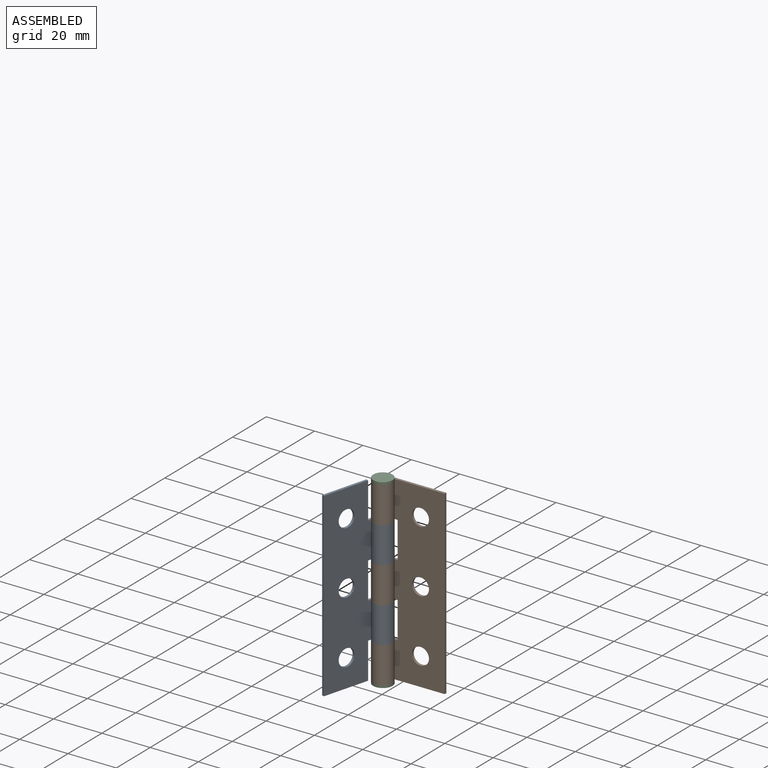
[diagram: assembled view]
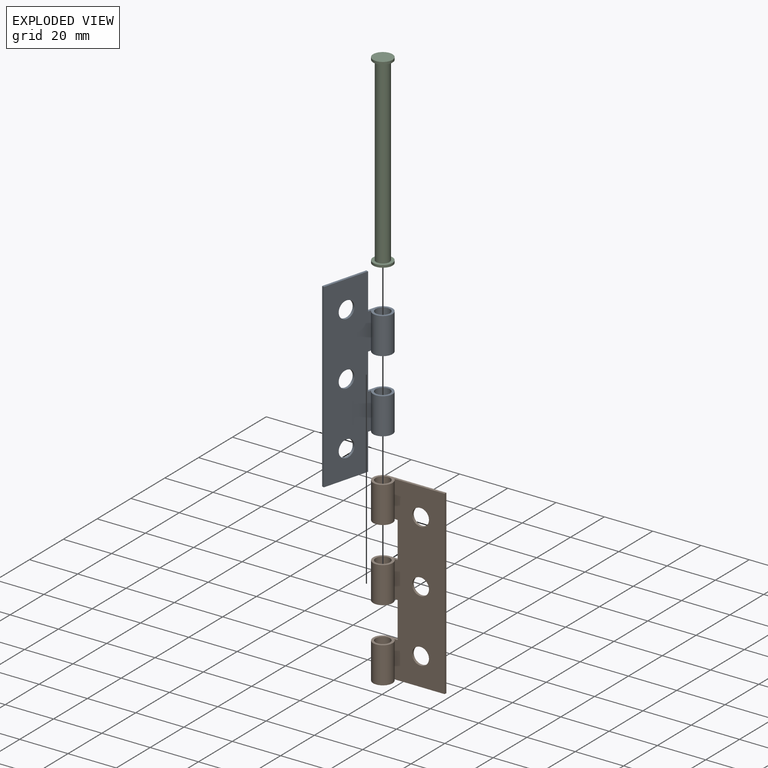
[diagram: exploded view]
GUIDED TOUR — MATED ASSEMBLY (Onshape document ad61bf7f7cb62c72eb166668, AutoMate assembly ad61bf7f7cb62c72eb166668_369f2b2ec34753710b511f61_ba933b5510f9bfcfc449f53c_default)

This assembly has 3 components, labeled P0..P2 below (a component is one placed occurrence of a part; the same part can appear more than once), held together by 3 mates. A mate is a constraint between two components; its type names the relative motion it leaves free:
  CYLINDRICAL — leaves both rotation about and translation along the listed axis free,
  PLANAR — leaves sliding in the plane through the listed point (normal = the listed direction) and rotation about that normal free.
Axis/direction vectors are unit vectors and 'through' points are millimeter coordinates, both in the assembly's world frame.

MATES
  1. CYLINDRICAL "Cylindrical 1": P1 <-> P2, axis (0.000, 0.000, -1.000) through (-43.37, -14.71, -29.45) mm
  2. PLANAR "Planar 1": P1 <-> P0, direction (0.000, 0.000, -1.000) through (-43.37, -14.71, 30.55) mm
  3. CYLINDRICAL "Cylindrical 2": P0 <-> P1, axis (0.000, 0.000, 1.000) through (-43.37, -14.71, 30.55) mm

ASSEMBLY ORDER
  1. P1 — the base component [order heuristic]
  2. P0 [order heuristic]
  3. P2 [order heuristic]
Order-tag legend:
  [order heuristic] — this assembly is geometrically interlocked (no collision-free removal order exists), so components are listed in mate-graph order; insertion feasibility is not verified.

Of the 3 components, 1 carries the full construction recipe — the FeatureScript program that regenerates the part's solid from scratch; the rest are supplied as boundary geometry only.
Each toured component is shown spotlighted twice — in the assembled view, then in the exploded view, where a leader line traces a displaced component back to its assembled socket (saturated green if recipe-attached, orange if geometry-only; every other component desaturated gray) — followed by its recipe or geometry summary and the mates that hold it.
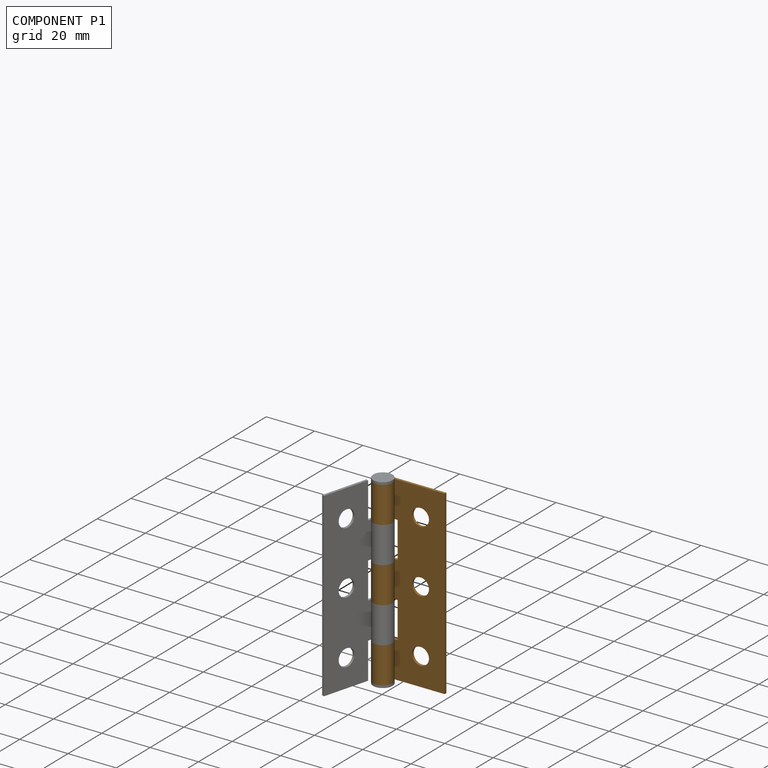
[diagram: component P1 — assembled]
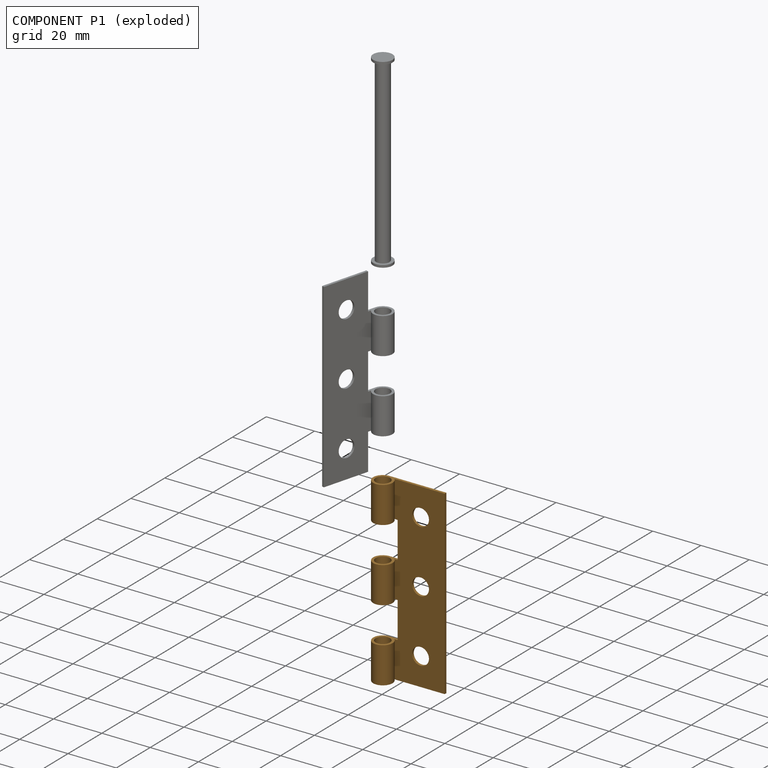
[diagram: component P1 — exploded]
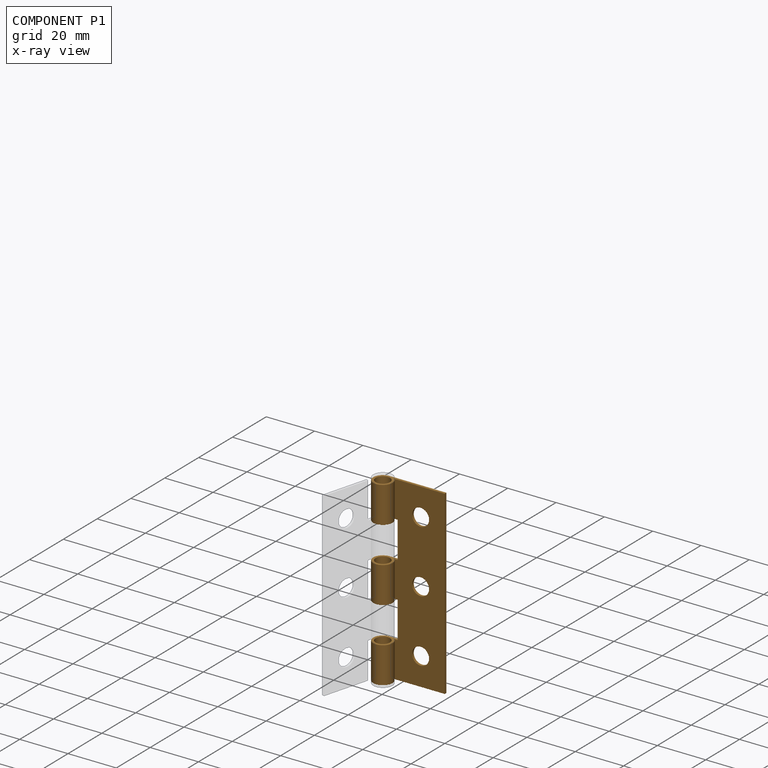
[diagram: component P1 — x-ray view]
COMPONENT P1 — geometry summary (no construction recipe available for this part):
  bounding box: 75.0 x 27.5 x 8.0 mm
  B-rep topology: 1 solid, 20 faces, 110 edges
  volume: 2435 mm^3 (15% of its bounding box)
  symmetry: mirror-symmetric across its z mid-plane
Held by: CYLINDRICAL mate "Cylindrical 1" to P2; PLANAR mate "Planar 1" to P0; CYLINDRICAL mate "Cylindrical 2" to P0.
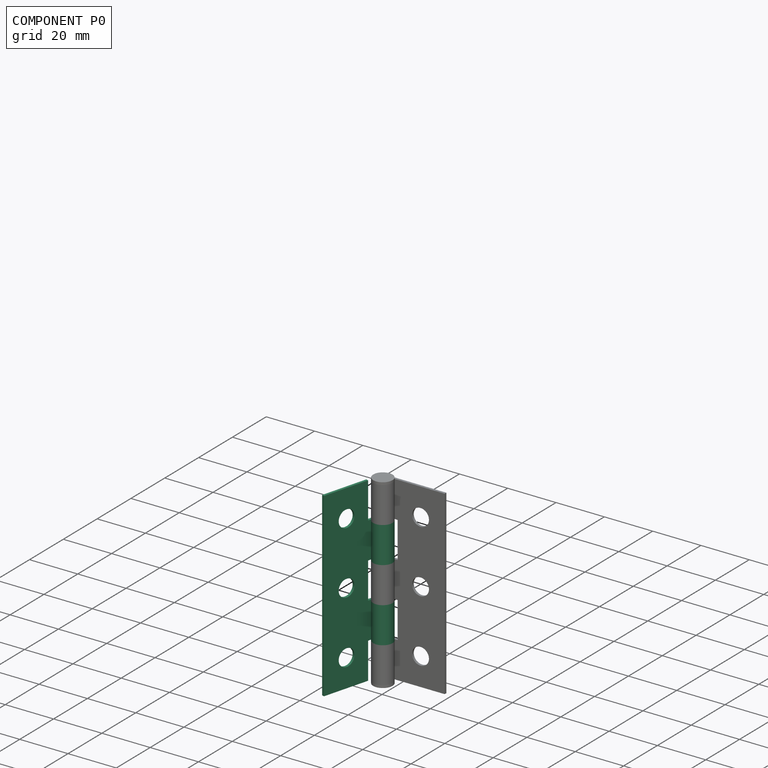
[diagram: component P0 — assembled]
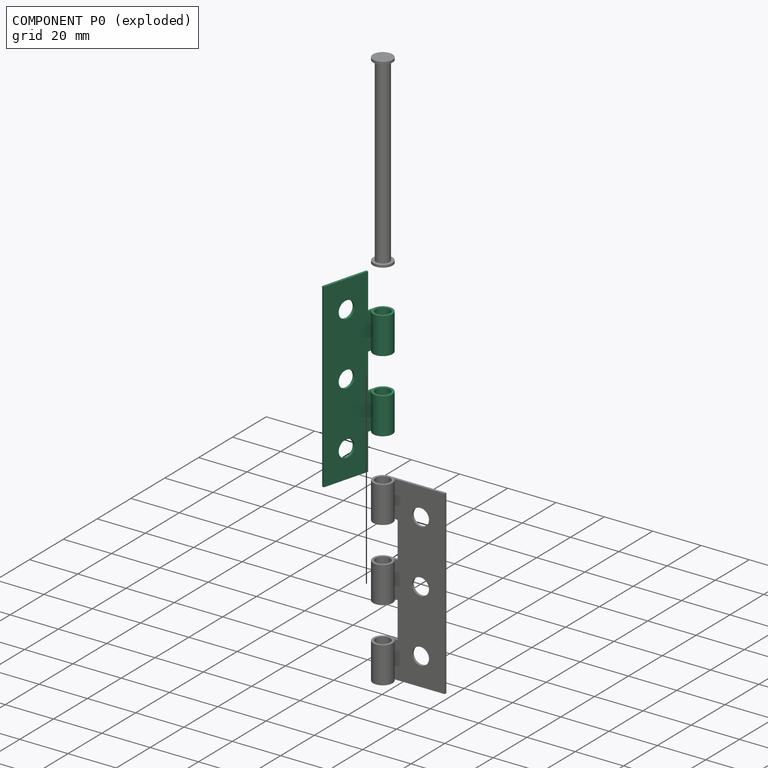
[diagram: component P0 — exploded]
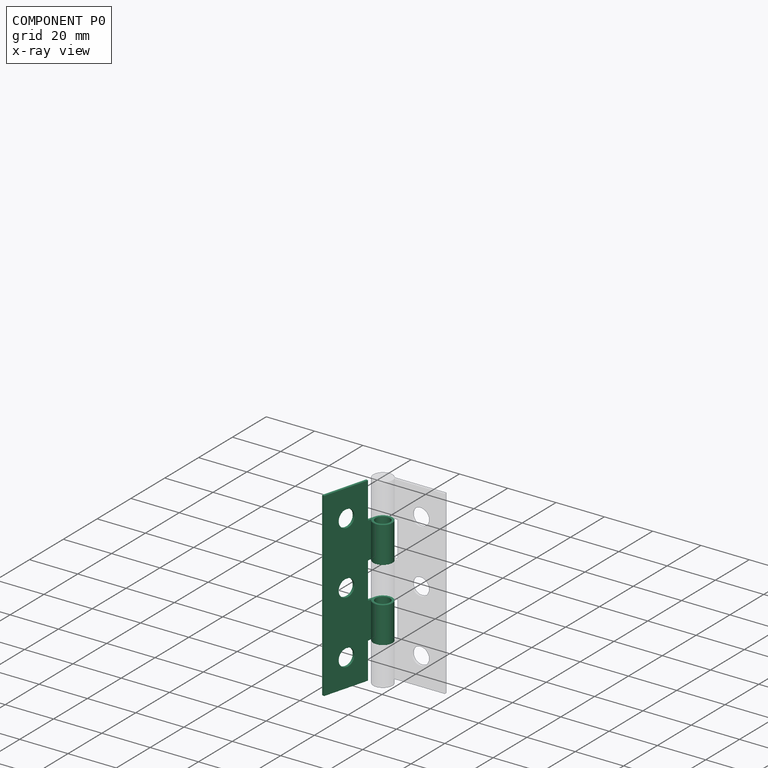
[diagram: component P0 — x-ray view]
COMPONENT P0 — recipe-attached (CADFS 00909816, mesh-verified: the recipe's output STEP matches this component's geometry to below the mesh-comparison resolution (tessellation chordal tolerance ~0.12 mm)).
Held by: PLANAR mate "Planar 1" to P1; CYLINDRICAL mate "Cylindrical 2" to P1.
Construction recipe (FeatureScript — the CAD program that rebuilds this solid; sketch coordinates are in the units given by the * unit suffixes, e.g. mm):

FeatureScript 1511;
import(path : "onshape/std/geometry.fs", version : "1511.0");
import(path : "onshape/std/common.fs", version : "1511.0");
const mm = millimeter;
const VERTEX = EntityType.VERTEX;
const EDGE = EntityType.EDGE;
const FACE = EntityType.FACE;
const BODY = EntityType.BODY;
function v(x, y){return vector(x, y);}
function OD(order){return orderDisambiguation(order);}
function OSD(set){return originalSetDisambiguation(set);}
function TD(topology){return topologyDisambiguation(topology);}
function TDD(query){return trueDependencyDisambiguation(query);}
function sQuery(a, b, c) {return sketchEntityQuery(a, b, c);}

annotation { "Feature Type Name" : "Feature", "Feature Type Description" : "" }
export const myFeature = defineFeature(function(context is Context, id is Id, definition is map)
    precondition{}
    {
        {
            var Q0;
            Q0=qCreatedBy(makeId("Front.planeOp"),FACE);
            var sketch = newSketch(context, id + "F0", { "sketchPlane" : qUnion([Q0])});
            skLineSegment(sketch, "E0.bottom", {"start": v(0, 37.5) * mm, "end": v(-20, 37.5) * mm});
            skLineSegment(sketch, "E0.top", {"start": v(0, -37.5) * mm, "end": v(-20, -37.5) * mm});
            skLineSegment(sketch, "E0.left", {"start": v(0, 37.5) * mm, "end": v(0, -37.5) * mm});
            skLineSegment(sketch, "E0.right", {"start": v(-20, 37.5) * mm, "end": v(-20, -37.5) * mm});
            skCircle(sketch, "E1", {"center": v(-10, 26) * mm, "radius": 3.5 * mm});
            skCircle(sketch, "E2", {"center": v(-10, 0) * mm, "radius": 3.5 * mm});
            skCircle(sketch, "E3", {"center": v(-10, -26) * mm, "radius": 3.5 * mm});
            skSolve(sketch);
        }
        {
            var Q0;
            Q0=makeQuery(id+"F0.imprint","IMPRINT",FACE,{"disambiguationData":[TD([[makeQuery(id+"F0.imprint","IMPRINT",EDGE,{"derivedFrom":sQuery(id+"F0.wireOp",EDGE,"E0.bottom")}),1.0]])]});
            extrude(context, id + "F1", {"entities" : qUnion([Q0]), "depth" : 1 * mm, "offsetDistance" : 25 * mm});
        }
        {
            var Q0;
            Q0=makeQuery(id+"F1.opExtrude","SWEPT_FACE",FACE,{"disambiguationData":[OSD([sQuery(id+"F0.wireOp",EDGE,"E0.top")])]});
            var sketch = newSketch(context, id + "F2", { "sketchPlane" : qUnion([Q0])});
            skCircle(sketch, "E4", {"center": v(-23.5, 4) * mm, "radius": 4 * mm});
            skLineSegment(sketch, "E5", {"start": v(-20, 0) * mm, "end": v(-23.5, 0) * mm});
            skLineSegment(sketch, "E6", {"start": v(-20, 1) * mm, "end": v(-20.85, 1) * mm});
            skCircle(sketch, "E7", {"center": v(-23.5, 4) * mm, "radius": 3 * mm});
            skSolve(sketch);
        }
        {
            var Q0;
            Q0=qSketchRegion(id+"F2",true);
            var Q1;
            {var subQ0=sQuery(id+"F2.wireOp",EDGE,"E5");Q1=makeQuery(id+"F2.imprint","IMPRINT",FACE,{"disambiguationData":[TD([[makeQuery(id+"F2.imprint","IMPRINT",EDGE,{"derivedFrom":subQ0}),-1.0]])]});}
            var Q2;
            Q2=makeQuery(id+"F1.opExtrude","SWEPT_FACE",FACE,{"disambiguationData":[OSD([sQuery(id+"F0.wireOp",EDGE,"E0.bottom")])]});
            extrude(context, id + "F3", {"entities" : qUnion([Q0, Q1]), "operationType" : NewBodyOperationType.ADD, "endBound" : BoundingType.UP_TO_SURFACE, "oppositeDirection" : true, "depth" : 25 * mm, "endBoundEntityFace" : qUnion([Q2]), "offsetDistance" : 25 * mm});
        }
        {
            var Q0;
            Q0=makeQuery(id+"F3.boolean.opBoolean","MERGE",FACE,{"derivedFrom":[makeQuery(id+"F1.opExtrude","CAP_FACE",FACE,{"disambiguationData":[OSD([sQuery(id+"F0.wireOp",EDGE,"E0.bottom"),sQuery(id+"F0.wireOp",EDGE,"E0.top"),sQuery(id+"F0.wireOp",EDGE,"E0.left"),sQuery(id+"F0.wireOp",EDGE,"E0.right"),sQuery(id+"F0.wireOp",EDGE,"E1"),sQuery(id+"F0.wireOp",EDGE,"E2"),sQuery(id+"F0.wireOp",EDGE,"E3")])],"isStart":false}),makeQuery(id+"F3.opExtrude","SWEPT_FACE",FACE,{"disambiguationData":[OSD([sQuery(id+"F2.wireOp",EDGE,"E6")])]})]});
            var sketch = newSketch(context, id + "F4", { "sketchPlane" : qUnion([Q0])});
            skLineSegment(sketch, "E8.bottom", {"start": v(-19.5, 37.5) * mm, "end": v(-27.5, 37.5) * mm});
            skLineSegment(sketch, "E8.top", {"start": v(-19.5, 22.5) * mm, "end": v(-27.5, 22.5) * mm});
            skLineSegment(sketch, "E8.left", {"start": v(-19.5, 37.5) * mm, "end": v(-19.5, 22.5) * mm});
            skLineSegment(sketch, "E8.right", {"start": v(-27.5, 37.5) * mm, "end": v(-27.5, 22.5) * mm});
            skLineSegment(sketch, "E9.bottom", {"start": v(-27.5, 7.5) * mm, "end": v(-19.5, 7.5) * mm});
            skLineSegment(sketch, "E9.top", {"start": v(-27.5, -7.5) * mm, "end": v(-19.5, -7.5) * mm});
            skLineSegment(sketch, "E9.left", {"start": v(-27.5, 7.5) * mm, "end": v(-27.5, -7.5) * mm});
            skLineSegment(sketch, "E9.right", {"start": v(-19.5, 7.5) * mm, "end": v(-19.5, -7.5) * mm});
            skLineSegment(sketch, "E10.bottom", {"start": v(-19.5, -37.5) * mm, "end": v(-27.5, -37.5) * mm});
            skLineSegment(sketch, "E10.top", {"start": v(-19.5, -22.5) * mm, "end": v(-27.5, -22.5) * mm});
            skLineSegment(sketch, "E10.left", {"start": v(-19.5, -37.5) * mm, "end": v(-19.5, -22.5) * mm});
            skLineSegment(sketch, "E10.right", {"start": v(-27.5, -37.5) * mm, "end": v(-27.5, -22.5) * mm});
            skLineSegment(sketch, "E11", {"start": v(-19.5, 22.5) * mm, "end": v(-19.5, 7.5) * mm});
            skLineSegment(sketch, "E12", {"start": v(-19.5, -7.5) * mm, "end": v(-19.5, -22.5) * mm});
            skSolve(sketch);
        }
        {
            var Q0;
            Q0 = qSketchRegion(id + "F4", true);
            extrude(context, id + "F5", {"entities" : qUnion([Q0]), "operationType" : NewBodyOperationType.REMOVE, "endBound" : BoundingType.THROUGH_ALL, "oppositeDirection" : true, "depth" : 25 * mm, "offsetDistance" : 25 * mm, "hasSecondDirection" : true, "secondDirectionBound" : SecondDirectionBoundingType.THROUGH_ALL, "secondDirectionOppositeDirection" : false, "secondDirectionDepth" : 25 * mm});
        }
    });
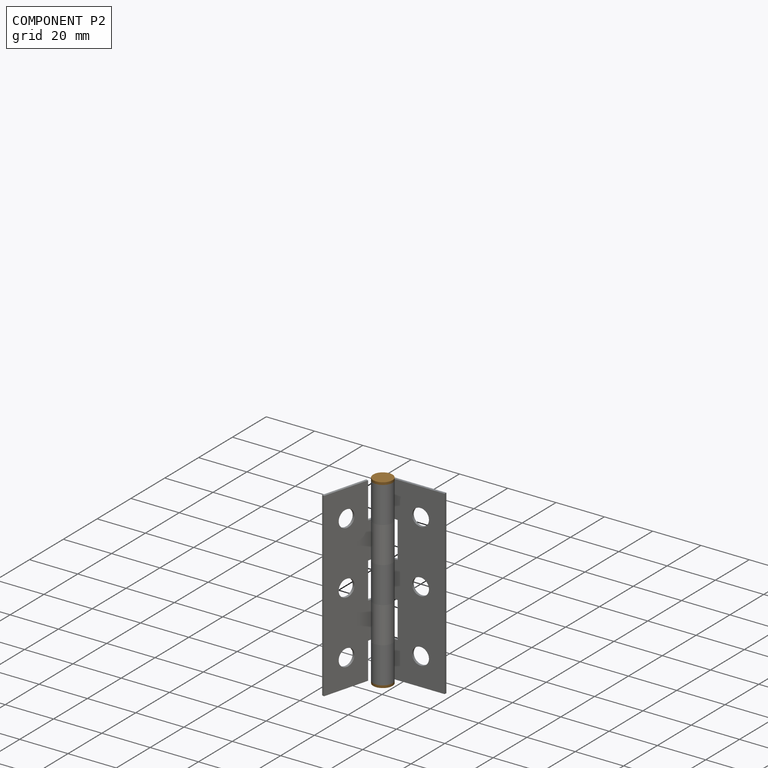
[diagram: component P2 — assembled]
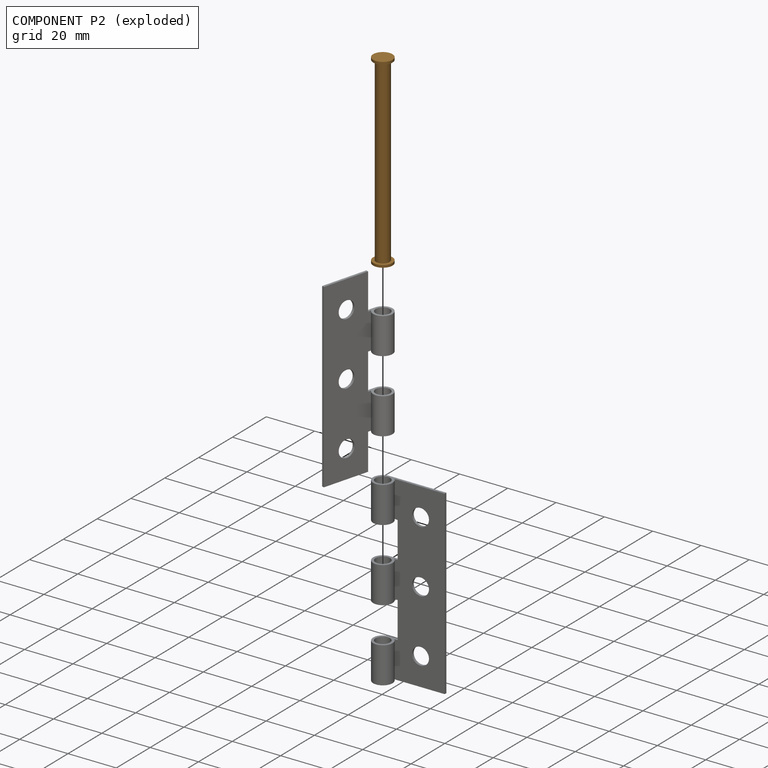
[diagram: component P2 — exploded]
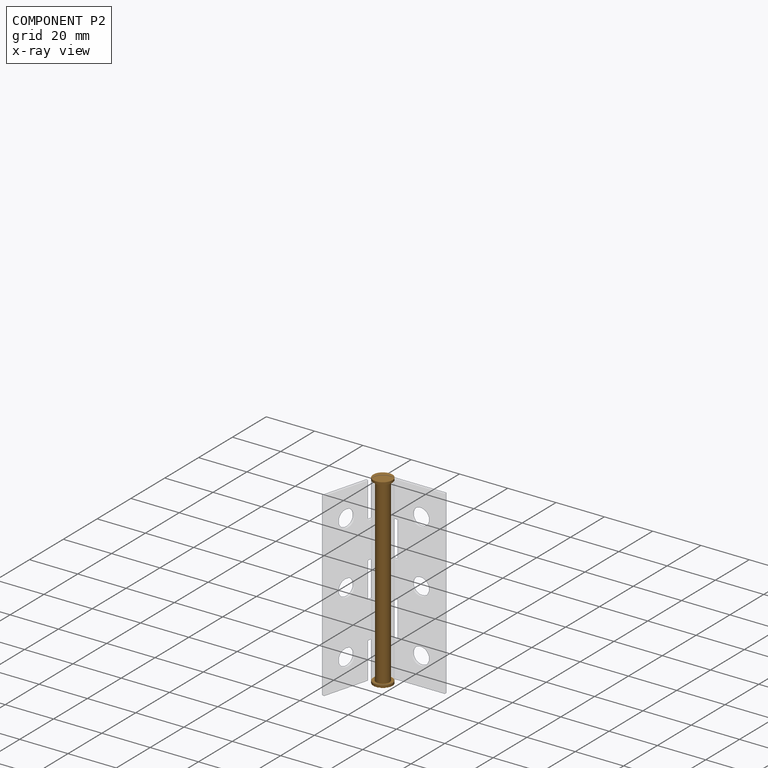
[diagram: component P2 — x-ray view]
COMPONENT P2 — geometry summary (no construction recipe available for this part):
  bounding box: 77.0 x 8.0 x 8.0 mm
  B-rep topology: 1 solid, 7 faces, 20 edges
  volume: 1882 mm^3 (38% of its bounding box)
  symmetry: 2-fold rotationally symmetric about the x axis; 2-fold rotationally symmetric about the y axis; revolution-symmetric about the z axis through its bounding-box center; mirror-symmetric across its x mid-plane, y mid-plane, z mid-plane
Held by: CYLINDRICAL mate "Cylindrical 1" to P1.
PROVENANCE & LICENSES
Assembly (occurrences, transforms, mates, per-part STEP geometry): AutoMate dataset, Zenodo record 7776208, CC0.
Construction recipes: CADFS (HuggingFace VladPyatov/CADFS, CC-BY-4.0, layered over the ABC dataset), FeatureScript reconstruction programs keyed by ABC model id.
Join: ABC meta listings map ABC model id -> Onshape documentId; within a shared document, parts are matched by geometric signature (bounding-box dims + volume at 0.1% relative tolerance, exact B-rep face/solid counts).
Verification: 1 of this assembly's 3 components carries a recipe attachment, and every attachment is mesh-verified: the CADFS STEP and the AutoMate member STEP were compared as meshes in their shared local frame (symmetric sampled-point-to-mesh distance); worst across the 1 attachment: below the mesh-comparison resolution (tessellation chordal tolerance ~0.12 mm) on a 80 mm part.
Renders: orthographic iso camera (az 35 / el 25); the floor grid conveys scale (grid pitch printed in each image; no ruler). In the exploded view each component is displaced by its stored offset vector: the offsets alone carry the explosion direction (mate normal/axis signs are not orientation cues and do not encode it), and separation distances are assigned per mate-chain, not proportionally to assembly-order depth.
